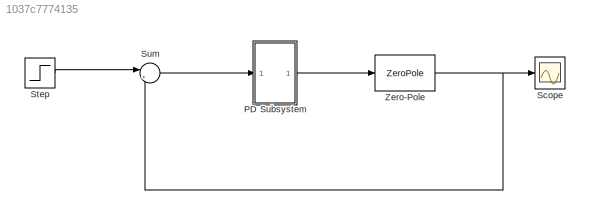
MODEL slx_1037c7774135
KIND model
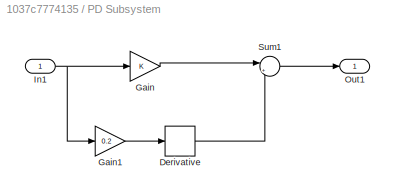
BLOCK [SubSystem] PD Subsystem
  Ports = [1, 1]
  RequestExecContextInheritance = off
BLOCK [Derivative] PD Subsystem/Derivative
BLOCK [Gain] PD Subsystem/Gain
  OutDataTypeStr = Inherit: Inherit via internal rule
  ParamDataTypeStr = Inherit: Inherit via internal rule
  SaturateOnIntegerOverflow = off
BLOCK [Gain] PD Subsystem/Gain1
  Gain = 0.2
  OutDataTypeStr = Inherit: Inherit via internal rule
  ParamDataTypeStr = Inherit: Inherit via internal rule
  SaturateOnIntegerOverflow = off
BLOCK [Inport] PD Subsystem/In1
  IconDisplay = Port number
BLOCK [Outport] PD Subsystem/Out1
  IconDisplay = Port number
BLOCK [Sum] PD Subsystem/Sum1
  IconShape = round
  InputSameDT = off
  Inputs = |++
  OutDataTypeStr = Inherit: Inherit via internal rule
  Ports = [2, 1]
  SaturateOnIntegerOverflow = off
BLOCK [Scope] Scope
  DataFormat = StructureWithTime
  Floating = off
  LimitDataPoints = off
  NumInputPorts = 1
  Ports = [1]
  SampleTime = 0
  ShowLegends = off
  TimeRange = 20
BLOCK [Step] Step
  SampleTime = 0
BLOCK [Sum] Sum
  IconShape = round
  InputSameDT = off
  Inputs = |+-
  OutDataTypeStr = Inherit: Inherit via internal rule
  Ports = [2, 1]
  SaturateOnIntegerOverflow = off
BLOCK [ZeroPole] Zero-Pole
  Poles = [0 -0.5]
  Zeros = []
LINE PD Subsystem/Derivative:1 -> PD Subsystem/Sum1:2
LINE PD Subsystem/Gain1:1 -> PD Subsystem/Derivative:1
LINE PD Subsystem/Gain:1 -> PD Subsystem/Sum1:1
NET PD Subsystem/In1:1 -> PD Subsystem/Gain1:1, PD Subsystem/Gain:1
LINE PD Subsystem/Sum1:1 -> PD Subsystem/Out1:1
LINE PD Subsystem:1 -> Zero-Pole:1
LINE Step:1 -> Sum:1
LINE Sum:1 -> PD Subsystem:1
NET Zero-Pole:1 -> Scope:1, Sum:2
note: NET lines group one-source signal fan-out (src -> all destinations, sorted); 1:1 wires keep LINE
